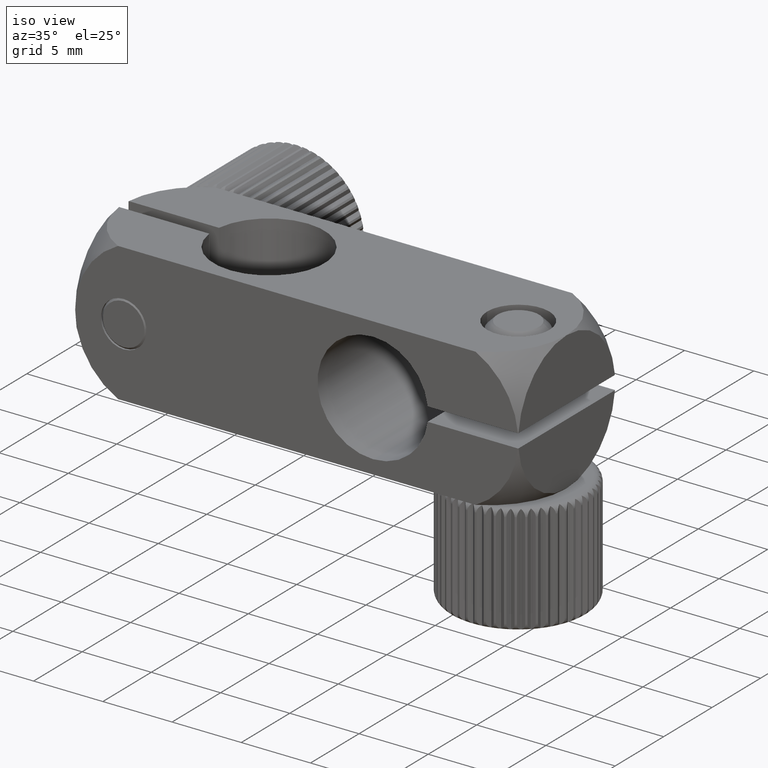
[diagram: clean part render]
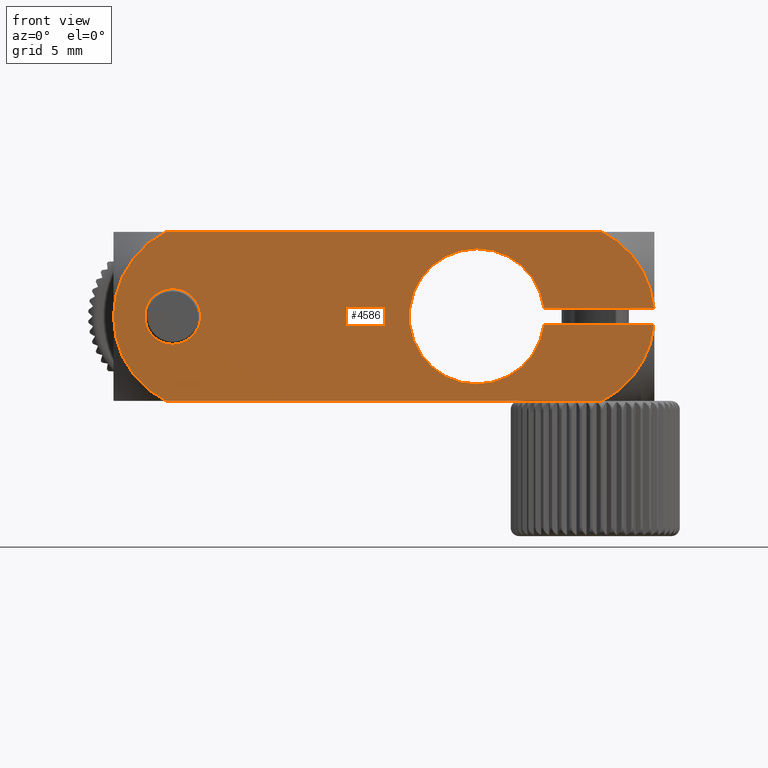
[diagram: tour spotlight — one face highlighted and labeled with its STEP entity id]
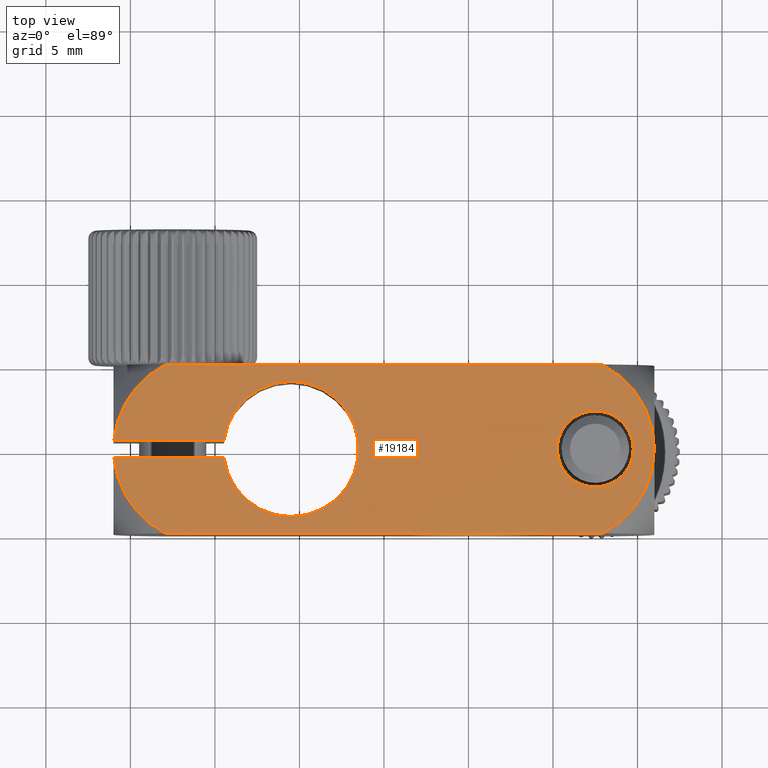
[diagram: tour spotlight — one face highlighted and labeled with its STEP entity id]
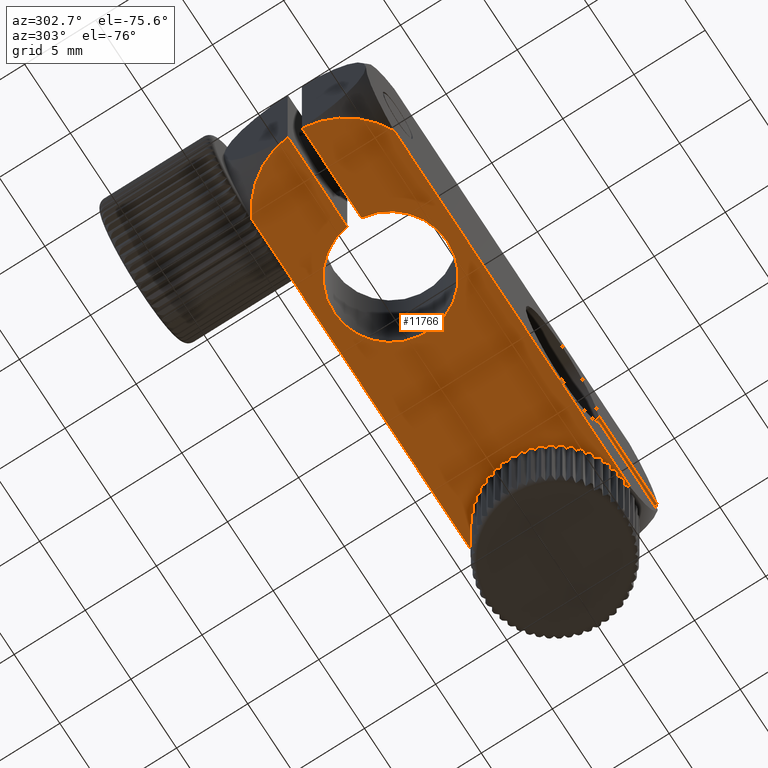
[diagram: tour spotlight — one face highlighted and labeled with its STEP entity id]
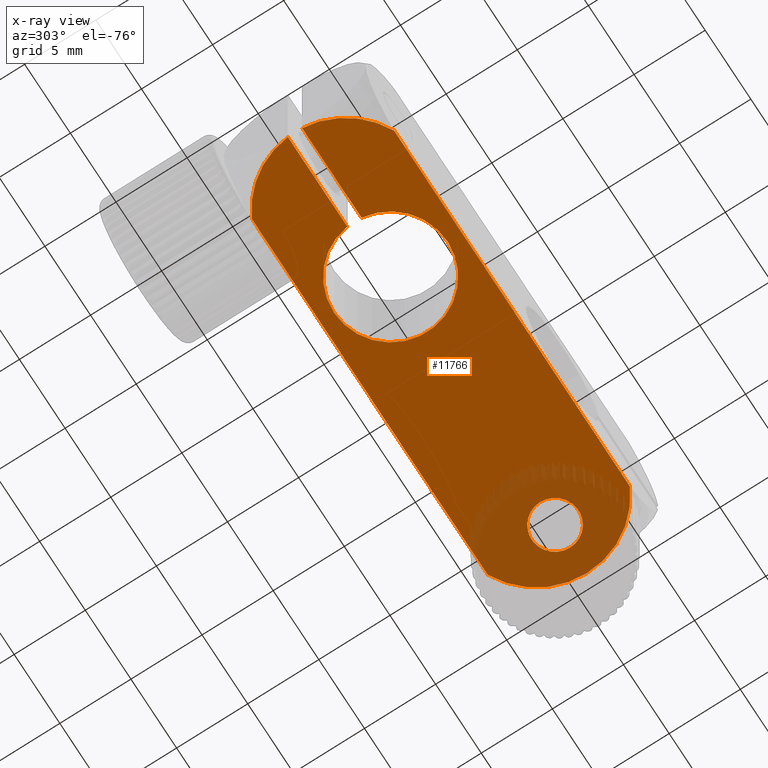
[diagram: x-ray of the same camera — body ghosted, this tour face saturated]
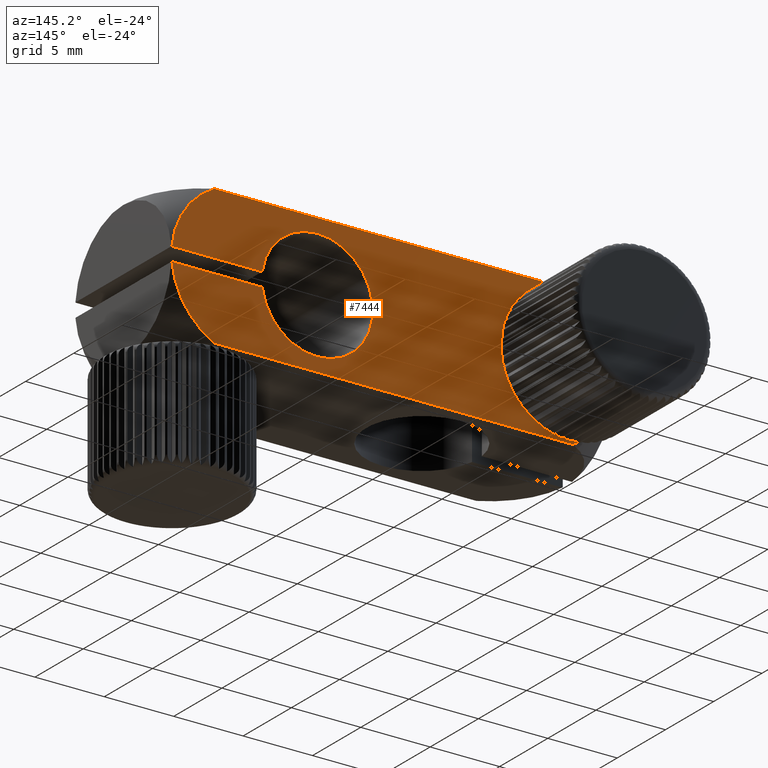
[diagram: tour spotlight — one face highlighted and labeled with its STEP entity id]
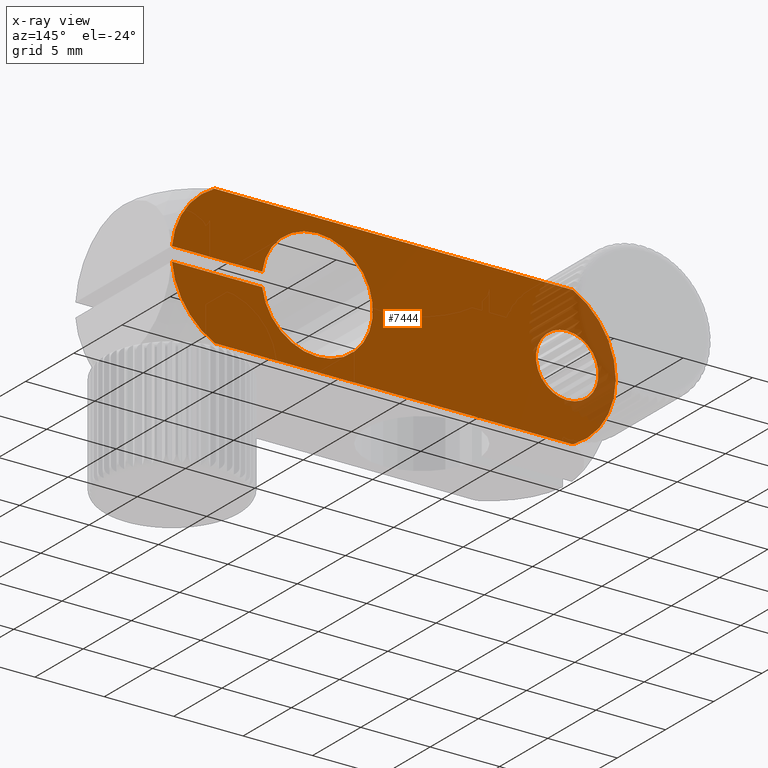
[diagram: x-ray of the same camera — body ghosted, this tour face saturated]
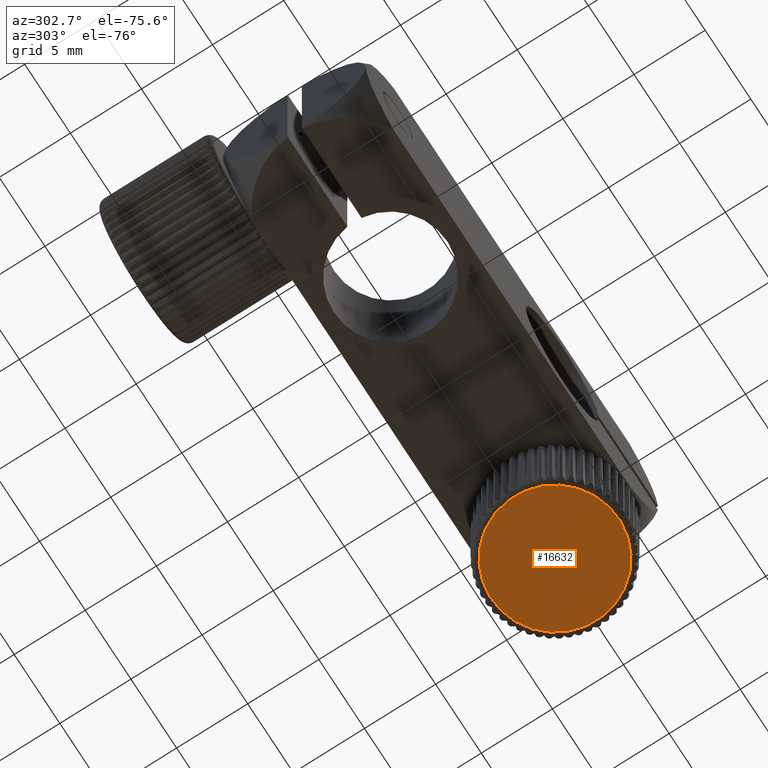
[diagram: tour spotlight — one face highlighted and labeled with its STEP entity id]
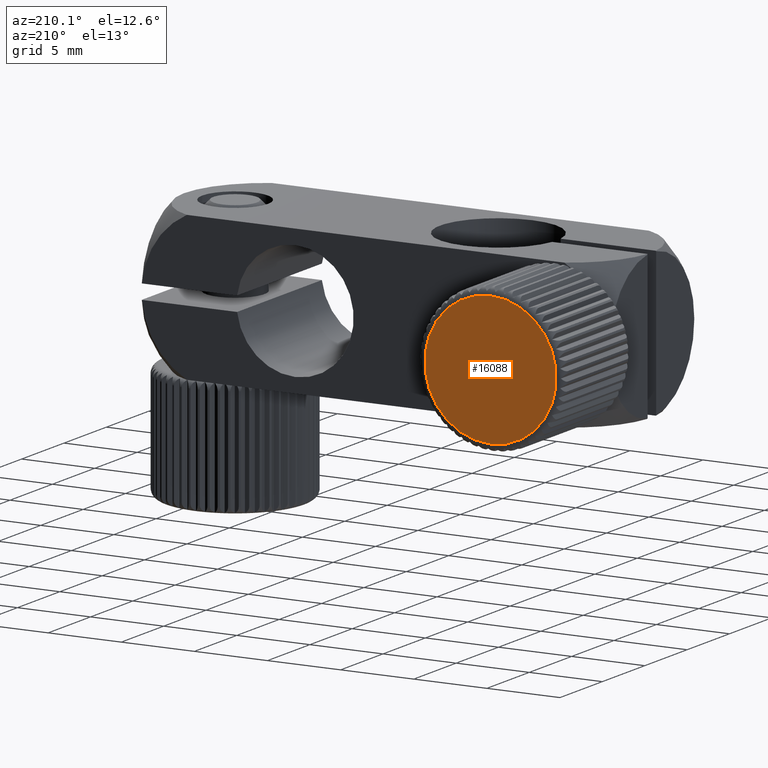
[diagram: tour spotlight — one face highlighted and labeled with its STEP entity id]
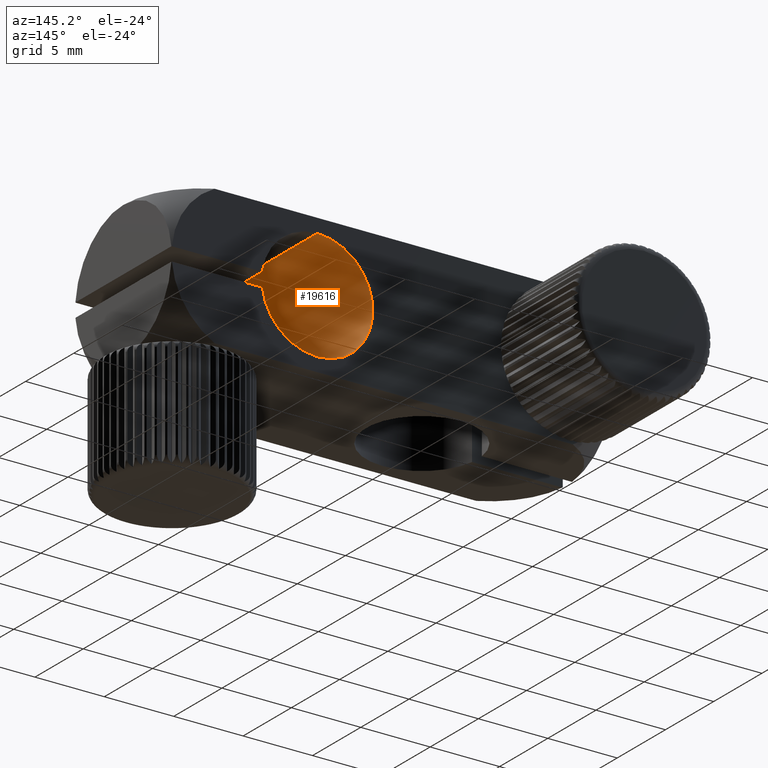
[diagram: tour spotlight — one face highlighted and labeled with its STEP entity id]
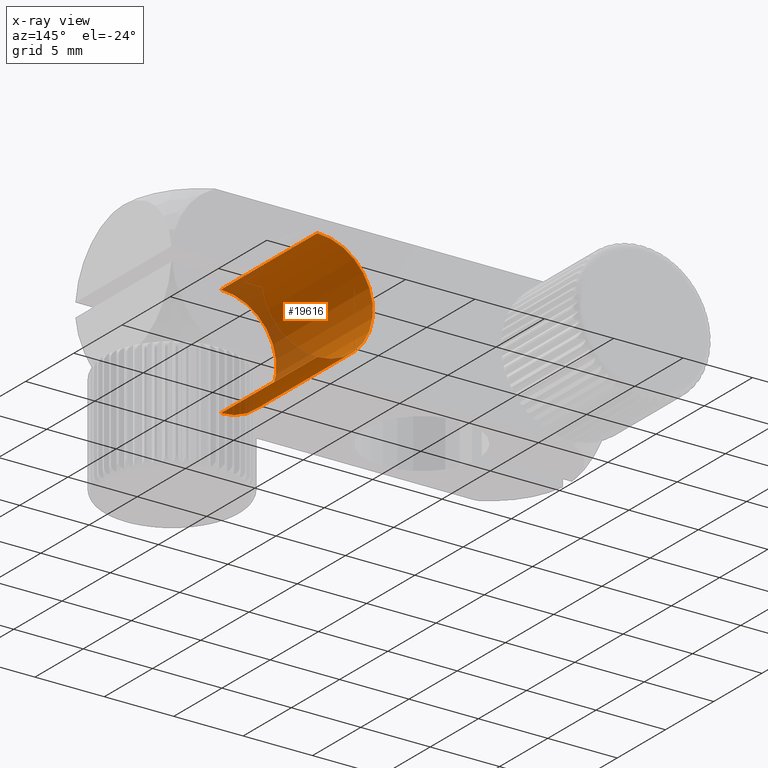
[diagram: x-ray of the same camera — body ghosted, this tour face saturated]
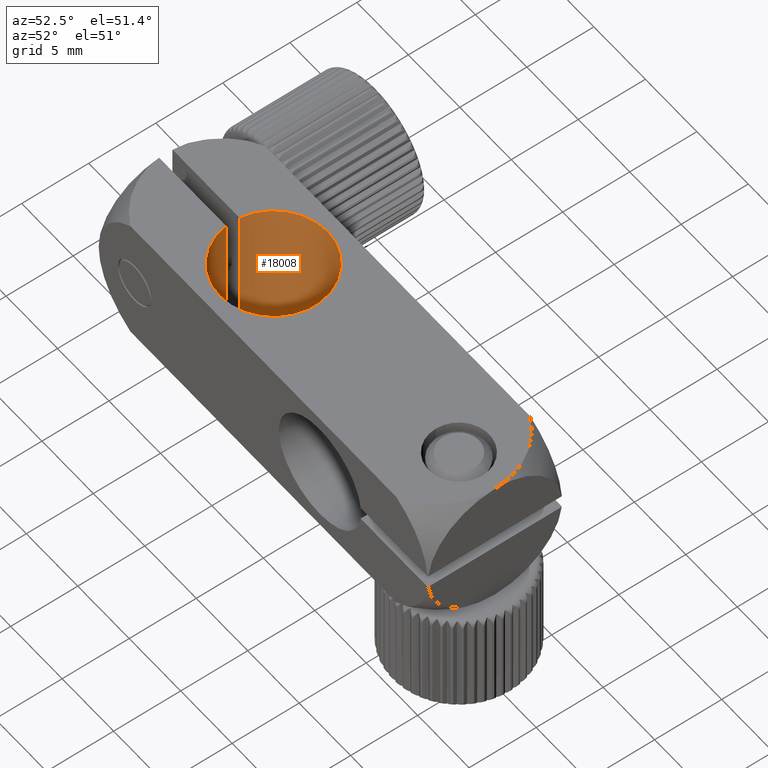
[diagram: tour spotlight — one face highlighted and labeled with its STEP entity id]
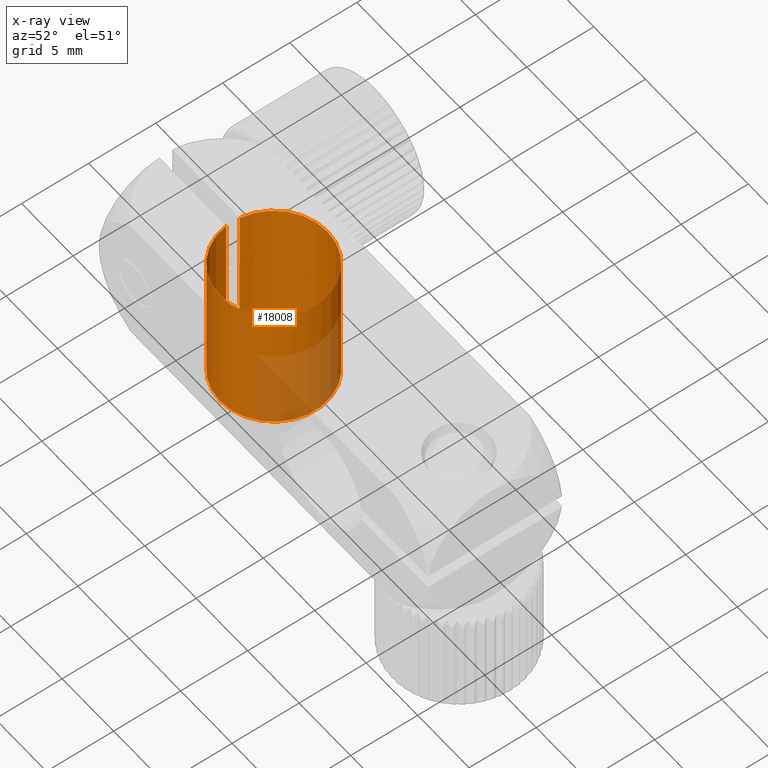
[diagram: x-ray of the same camera — body ghosted, this tour face saturated]
A machine part: a face-by-face anatomy tour. The part has 480 B-rep faces; the first image is the clean iso view, then the 8 largest visible faces are spotlighted one at a time (largest first), each with its STEP entity span.

Face 1 — front view, entity #4586. In plain terms, the highlighted planar face has unit normal (-0, 1, 0).
Definition (entity closure, byte-faithful):
#46 = VERTEX_POINT ( 'NONE', #1159 ) ;
#154 = ORIENTED_EDGE ( 'NONE', *, *, #8120, .F. ) ;
#175 = DIRECTION ( 'NONE',  ( 1.000000000000000000, 1.355252715606880800E-016, 1.214962810441751000E-016 ) ) ;
#222 = DIRECTION ( 'NONE',  ( 1.355252715606880800E-016, -1.000000000000000000, -0.0000000000000000000 ) ) ;
#500 = AXIS2_PLACEMENT_3D ( 'NONE', #3175, #222, #14158 ) ;
#534 = ORIENTED_EDGE ( 'NONE', *, *, #19892, .F. ) ;
#657 = EDGE_LOOP ( 'NONE', ( #10662, #1808, #154, #14033, #6453, #14779, #3223, #12564, #2085, #534, #15858 ) ) ;
#759 = DIRECTION ( 'NONE',  ( -1.355252715606880800E-016, 1.000000000000000000, 0.0000000000000000000 ) ) ;
#1159 = CARTESIAN_POINT ( 'NONE',  ( -12.90983005625052900, -4.999999999999999100, -5.000000000000000000 ) ) ;
#1204 = CARTESIAN_POINT ( 'NONE',  ( 9.468626966596886500, -4.999999999999995600, 0.5000000000000008900 ) ) ;
#1366 = EDGE_CURVE ( 'NONE', #13792, #1731, #16243, .T. ) ;
#1533 = AXIS2_PLACEMENT_3D ( 'NONE', #13113, #1909, #6823 ) ;
#1731 = VERTEX_POINT ( 'NONE', #11859 ) ;
#1808 = ORIENTED_EDGE ( 'NONE', *, *, #18215, .F. ) ;
#1825 = EDGE_CURVE ( 'NONE', #19272, #3856, #20169, .T. ) ;
#1864 = CIRCLE ( 'NONE', #16062, 5.590169943749477200 ) ;
#1909 = DIRECTION ( 'NONE',  ( -1.355252715606880800E-016, 1.000000000000000000, 0.0000000000000000000 ) ) ;
#2034 = AXIS2_PLACEMENT_3D ( 'NONE', #9656, #14535, #3547 ) ;
#2085 = ORIENTED_EDGE ( 'NONE', *, *, #1366, .F. ) ;
#2143 = FACE_BOUND ( 'NONE', #5744, .T. ) ;
#2329 = DIRECTION ( 'NONE',  ( 1.355252715606880800E-016, -1.000000000000000000, -0.0000000000000000000 ) ) ;
#2543 = CARTESIAN_POINT ( 'NONE',  ( 12.90983005625053300, -4.999999999999996400, -5.000000000000000000 ) ) ;
#2649 = VERTEX_POINT ( 'NONE', #4499 ) ;
#2675 = CARTESIAN_POINT ( 'NONE',  ( 10.40983005625052700, -4.999999999999996400, 0.0000000000000000000 ) ) ;
#3002 = DIRECTION ( 'NONE',  ( 1.000000000000000000, 1.355252715606880800E-016, 0.0000000000000000000 ) ) ;
#3124 = CARTESIAN_POINT ( 'NONE',  ( 9.468626966596886500, -4.999999999999996400, -0.5000000000000008900 ) ) ;
#3175 = CARTESIAN_POINT ( 'NONE',  ( 5.500000000000000000, -4.999999999999997300, 0.0000000000000000000 ) ) ;
#3223 = ORIENTED_EDGE ( 'NONE', *, *, #5642, .F. ) ;
#3239 = AXIS2_PLACEMENT_3D ( 'NONE', #10636, #4377, #16881 ) ;
#3547 = DIRECTION ( 'NONE',  ( -1.000000000000000000, 0.0000000000000000000, 0.0000000000000000000 ) ) ;
#3743 = VECTOR ( 'NONE', #3002, 1000.000000000000000 ) ;
#3856 = VERTEX_POINT ( 'NONE', #1204 ) ;
#3958 = DIRECTION ( 'NONE',  ( -1.000000000000000000, -2.168404344971008400E-016, 0.0000000000000000000 ) ) ;
#4196 = CARTESIAN_POINT ( 'NONE',  ( -15.99999999999999300, -5.000000000000000000, 5.000000000000000000 ) ) ;
#4377 = DIRECTION ( 'NONE',  ( 1.355252715606880800E-016, -1.000000000000000000, -0.0000000000000000000 ) ) ;
#4499 = CARTESIAN_POINT ( 'NONE',  ( 9.468626966596886500, -4.999999999999995600, -0.5000000000000008900 ) ) ;
#4521 = DIRECTION ( 'NONE',  ( -1.000000000000000000, -1.551583845779545700E-016, 0.0000000000000000000 ) ) ;
#4586 = ADVANCED_FACE ( 'NONE', ( #2143, #12989 ), #19656, .F. ) ;
#5642 = EDGE_CURVE ( 'NONE', #2649, #5956, #11039, .T. ) ;
#5744 = EDGE_LOOP ( 'NONE', ( #18590, #18289 ) ) ;
#5956 = VERTEX_POINT ( 'NONE', #15253 ) ;
#6167 = EDGE_CURVE ( 'NONE', #1731, #2649, #9270, .T. ) ;
#6261 = EDGE_CURVE ( 'NONE', #16070, #10030, #16150, .T. ) ;
#6293 = VECTOR ( 'NONE', #175, 1000.000000000000000 ) ;
#6396 = AXIS2_PLACEMENT_3D ( 'NONE', #10171, #759, #13336 ) ;
#6411 = CARTESIAN_POINT ( 'NONE',  ( 5.500000000000000900, -4.999999999999997300, 4.000000000000000900 ) ) ;
#6443 = LINE ( 'NONE', #17219, #3743 ) ;
#6453 = ORIENTED_EDGE ( 'NONE', *, *, #15966, .T. ) ;
#6823 = DIRECTION ( 'NONE',  ( -1.000000000000000000, 0.0000000000000000000, 0.0000000000000000000 ) ) ;
#7489 = DIRECTION ( 'NONE',  ( -1.355252715606880800E-016, 1.000000000000000000, 0.0000000000000000000 ) ) ;
#7751 = DIRECTION ( 'NONE',  ( -1.000000000000000000, -1.551583845779544700E-016, 0.0000000000000000000 ) ) ;
#8120 = EDGE_CURVE ( 'NONE', #20060, #8266, #9716, .T. ) ;
#8221 = EDGE_CURVE ( 'NONE', #46, #20060, #10471, .T. ) ;
#8266 = VERTEX_POINT ( 'NONE', #10942 ) ;
#8562 = CARTESIAN_POINT ( 'NONE',  ( -16.00000000000000000, -5.000000000000000000, 0.0000000000000000000 ) ) ;
#8603 = LINE ( 'NONE', #17259, #12813 ) ;
#8997 = DIRECTION ( 'NONE',  ( -1.355252715606880800E-016, 1.000000000000000000, 0.0000000000000000000 ) ) ;
#9066 = CARTESIAN_POINT ( 'NONE',  ( 10.40983005625052700, -4.999999999999996400, 0.0000000000000000000 ) ) ;
#9144 = AXIS2_PLACEMENT_3D ( 'NONE', #13266, #2329, #3958 ) ;
#9222 = CARTESIAN_POINT ( 'NONE',  ( -12.50000000000000000, -4.999999999999999100, 1.649999999999993500 ) ) ;
#9270 = CIRCLE ( 'NONE', #9144, 4.000000000000000900 ) ;
#9656 = CARTESIAN_POINT ( 'NONE',  ( -12.50000000000000000, -4.999999999999999100, 0.0000000000000000000 ) ) ;
#9716 = CIRCLE ( 'NONE', #6396, 5.590169943749473600 ) ;
#9758 = CARTESIAN_POINT ( 'NONE',  ( 15.97759441908055300, -4.999999999999995600, 0.5000000000000001100 ) ) ;
#10030 = VERTEX_POINT ( 'NONE', #9222 ) ;
#10171 = CARTESIAN_POINT ( 'NONE',  ( -10.40983005625052700, -4.999999999999999100, 0.0000000000000000000 ) ) ;
#10471 = CIRCLE ( 'NONE', #14179, 5.590169943749473600 ) ;
#10636 = CARTESIAN_POINT ( 'NONE',  ( 5.500000000000000000, -4.999999999999997300, 0.0000000000000000000 ) ) ;
#10662 = ORIENTED_EDGE ( 'NONE', *, *, #13268, .F. ) ;
#10690 = AXIS2_PLACEMENT_3D ( 'NONE', #9066, #8997, #16830 ) ;
#10880 = DIRECTION ( 'NONE',  ( -1.355252715606880800E-016, 1.000000000000000000, 0.0000000000000000000 ) ) ;
#10942 = CARTESIAN_POINT ( 'NONE',  ( -12.90983005625052900, -4.999999999999999100, 5.000000000000000000 ) ) ;
#11018 = DIRECTION ( 'NONE',  ( -1.355252715606880800E-016, 1.000000000000000000, 0.0000000000000000000 ) ) ;
#11039 = LINE ( 'NONE', #3124, #6293 ) ;
#11636 = EDGE_CURVE ( 'NONE', #5956, #15299, #1864, .T. ) ;
#11859 = CARTESIAN_POINT ( 'NONE',  ( 5.500000000000000000, -4.999999999999997300, -4.000000000000000900 ) ) ;
#11920 = CARTESIAN_POINT ( 'NONE',  ( 17.50000000000000000, -4.999999999999995600, 0.4999999999999998900 ) ) ;
#12159 = AXIS2_PLACEMENT_3D ( 'NONE', #4196, #7489, #15255 ) ;
#12564 = ORIENTED_EDGE ( 'NONE', *, *, #6167, .F. ) ;
#12813 = VECTOR ( 'NONE', #14161, 1000.000000000000000 ) ;
#12989 = FACE_OUTER_BOUND ( 'NONE', #657, .T. ) ;
#13113 = CARTESIAN_POINT ( 'NONE',  ( -12.50000000000000000, -4.999999999999999100, 0.0000000000000000000 ) ) ;
#13266 = CARTESIAN_POINT ( 'NONE',  ( 5.500000000000000000, -4.999999999999997300, 0.0000000000000000000 ) ) ;
#13268 = EDGE_CURVE ( 'NONE', #20333, #19272, #19300, .T. ) ;
#13336 = DIRECTION ( 'NONE',  ( -1.000000000000000000, -1.551583845779545700E-016, 0.0000000000000000000 ) ) ;
#13780 = VECTOR ( 'NONE', #20091, 1000.000000000000000 ) ;
#13792 = VERTEX_POINT ( 'NONE', #6411 ) ;
#14033 = ORIENTED_EDGE ( 'NONE', *, *, #8221, .F. ) ;
#14158 = DIRECTION ( 'NONE',  ( -1.000000000000000000, -2.168404344971008400E-016, 0.0000000000000000000 ) ) ;
#14161 = DIRECTION ( 'NONE',  ( 1.000000000000000000, 1.355252715606880800E-016, 0.0000000000000000000 ) ) ;
#14179 = AXIS2_PLACEMENT_3D ( 'NONE', #15578, #11018, #4521 ) ;
#14389 = CARTESIAN_POINT ( 'NONE',  ( -12.50000000000000000, -4.999999999999999100, -1.649999999999993500 ) ) ;
#14535 = DIRECTION ( 'NONE',  ( -1.355252715606880800E-016, 1.000000000000000000, 0.0000000000000000000 ) ) ;
#14779 = ORIENTED_EDGE ( 'NONE', *, *, #11636, .F. ) ;
#15253 = CARTESIAN_POINT ( 'NONE',  ( 15.97759441908055300, -4.999999999999995600, -0.5000000000000001100 ) ) ;
#15255 = DIRECTION ( 'NONE',  ( -1.000000000000000000, -1.355252715606880800E-016, 0.0000000000000000000 ) ) ;
#15299 = VERTEX_POINT ( 'NONE', #2543 ) ;
#15578 = CARTESIAN_POINT ( 'NONE',  ( -10.40983005625052700, -4.999999999999999100, 0.0000000000000000000 ) ) ;
#15858 = ORIENTED_EDGE ( 'NONE', *, *, #1825, .F. ) ;
#15966 = EDGE_CURVE ( 'NONE', #46, #15299, #6443, .T. ) ;
#15977 = CARTESIAN_POINT ( 'NONE',  ( 12.90983005625053300, -4.999999999999996400, 5.000000000000000000 ) ) ;
#16062 = AXIS2_PLACEMENT_3D ( 'NONE', #2675, #10880, #7751 ) ;
#16070 = VERTEX_POINT ( 'NONE', #14389 ) ;
#16150 = CIRCLE ( 'NONE', #2034, 1.649999999999993500 ) ;
#16243 = CIRCLE ( 'NONE', #3239, 4.000000000000000900 ) ;
#16830 = DIRECTION ( 'NONE',  ( -1.000000000000000000, -1.551583845779544700E-016, 0.0000000000000000000 ) ) ;
#16881 = DIRECTION ( 'NONE',  ( -1.000000000000000000, -2.168404344971008400E-016, 0.0000000000000000000 ) ) ;
#17219 = CARTESIAN_POINT ( 'NONE',  ( -15.99999999999999300, -5.000000000000000000, -5.000000000000000000 ) ) ;
#17259 = CARTESIAN_POINT ( 'NONE',  ( -15.99999999999999300, -5.000000000000000000, 5.000000000000000000 ) ) ;
#17456 = EDGE_CURVE ( 'NONE', #10030, #16070, #18217, .T. ) ;
#18176 = CIRCLE ( 'NONE', #500, 4.000000000000000900 ) ;
#18215 = EDGE_CURVE ( 'NONE', #8266, #20333, #8603, .T. ) ;
#18217 = CIRCLE ( 'NONE', #1533, 1.649999999999993500 ) ;
#18289 = ORIENTED_EDGE ( 'NONE', *, *, #6261, .T. ) ;
#18590 = ORIENTED_EDGE ( 'NONE', *, *, #17456, .T. ) ;
#19272 = VERTEX_POINT ( 'NONE', #9758 ) ;
#19300 = CIRCLE ( 'NONE', #10690, 5.590169943749477200 ) ;
#19656 = PLANE ( 'NONE',  #12159 ) ;
#19892 = EDGE_CURVE ( 'NONE', #3856, #13792, #18176, .T. ) ;
#20060 = VERTEX_POINT ( 'NONE', #8562 ) ;
#20091 = DIRECTION ( 'NONE',  ( -1.000000000000000000, -1.355252715606880800E-016, 1.214962810441751000E-016 ) ) ;
#20169 = LINE ( 'NONE', #11920, #13780 ) ;
#20333 = VERTEX_POINT ( 'NONE', #15977 ) ;

Face 2 — top view, entity #19184. In plain terms, the highlighted planar face has unit normal (0, 0, 1).
Definition (entity closure, byte-faithful):
#183 = EDGE_CURVE ( 'NONE', #14626, #6818, #4956, .T. ) ;
#346 = CARTESIAN_POINT ( 'NONE',  ( -5.499999999999995600, 0.0000000000000000000, 5.000000000000000000 ) ) ;
#402 = DIRECTION ( 'NONE',  ( -0.0000000000000000000, -0.0000000000000000000, 1.000000000000000000 ) ) ;
#521 = CARTESIAN_POINT ( 'NONE',  ( -15.97759441908055000, 0.5000000000000000000, 5.000000000000000000 ) ) ;
#752 = VECTOR ( 'NONE', #19096, 1000.000000000000000 ) ;
#777 = CARTESIAN_POINT ( 'NONE',  ( 12.90983005625052000, 5.000000000000003600, 5.000000000000000000 ) ) ;
#1441 = DIRECTION ( 'NONE',  ( 0.0000000000000000000, 0.0000000000000000000, 1.000000000000000000 ) ) ;
#1474 = CARTESIAN_POINT ( 'NONE',  ( 10.40983005625052700, 0.0000000000000000000, 5.000000000000000000 ) ) ;
#1529 = DIRECTION ( 'NONE',  ( 1.000000000000000000, 0.0000000000000000000, 0.0000000000000000000 ) ) ;
#1591 = VERTEX_POINT ( 'NONE', #521 ) ;
#1857 = DIRECTION ( 'NONE',  ( 0.0000000000000000000, 0.0000000000000000000, 1.000000000000000000 ) ) ;
#2156 = EDGE_CURVE ( 'NONE', #1591, #9802, #10340, .T. ) ;
#2584 = CIRCLE ( 'NONE', #9075, 5.590169943749474500 ) ;
#2722 = AXIS2_PLACEMENT_3D ( 'NONE', #346, #1857, #6636 ) ;
#2949 = CIRCLE ( 'NONE', #6527, 5.590169943749474500 ) ;
#3244 = DIRECTION ( 'NONE',  ( 0.0000000000000000000, 0.0000000000000000000, 1.000000000000000000 ) ) ;
#3615 = ORIENTED_EDGE ( 'NONE', *, *, #18215, .T. ) ;
#3679 = FACE_OUTER_BOUND ( 'NONE', #17063, .T. ) ;
#3855 = CARTESIAN_POINT ( 'NONE',  ( 15.99999999999999600, 0.0000000000000000000, 5.000000000000000000 ) ) ;
#4073 = EDGE_CURVE ( 'NONE', #20333, #18067, #14447, .T. ) ;
#4106 = ORIENTED_EDGE ( 'NONE', *, *, #14520, .T. ) ;
#4906 = ORIENTED_EDGE ( 'NONE', *, *, #2156, .T. ) ;
#4956 = CIRCLE ( 'NONE', #9013, 2.249999999999988000 ) ;
#5600 = CARTESIAN_POINT ( 'NONE',  ( -15.99999999999999600, -0.5000000000000000000, 5.000000000000000000 ) ) ;
#5816 = CARTESIAN_POINT ( 'NONE',  ( 14.74999999999998900, 0.0000000000000000000, 5.000000000000000900 ) ) ;
#5884 = FACE_BOUND ( 'NONE', #9080, .T. ) ;
#6197 = DIRECTION ( 'NONE',  ( -0.0000000000000000000, -0.0000000000000000000, -1.000000000000000000 ) ) ;
#6246 = CIRCLE ( 'NONE', #19634, 5.590169943749473600 ) ;
#6527 = AXIS2_PLACEMENT_3D ( 'NONE', #17188, #9549, #1529 ) ;
#6636 = DIRECTION ( 'NONE',  ( 1.000000000000000000, 0.0000000000000000000, -0.0000000000000000000 ) ) ;
#6704 = ORIENTED_EDGE ( 'NONE', *, *, #8395, .F. ) ;
#6737 = ORIENTED_EDGE ( 'NONE', *, *, #19808, .T. ) ;
#6818 = VERTEX_POINT ( 'NONE', #5816 ) ;
#7109 = DIRECTION ( 'NONE',  ( 0.0000000000000000000, 0.0000000000000000000, 1.000000000000000000 ) ) ;
#7160 = AXIS2_PLACEMENT_3D ( 'NONE', #20105, #6197, #15548 ) ;
#7223 = CARTESIAN_POINT ( 'NONE',  ( 12.50000000000000000, 0.0000000000000000000, 5.000000000000000900 ) ) ;
#7523 = DIRECTION ( 'NONE',  ( 1.000000000000000000, 0.0000000000000000000, 0.0000000000000000000 ) ) ;
#8266 = VERTEX_POINT ( 'NONE', #10942 ) ;
#8395 = EDGE_CURVE ( 'NONE', #6818, #14626, #20285, .T. ) ;
#8603 = LINE ( 'NONE', #17259, #12813 ) ;
#8650 = CARTESIAN_POINT ( 'NONE',  ( -15.97759441908055000, -0.5000000000000000000, 5.000000000000000000 ) ) ;
#8663 = CARTESIAN_POINT ( 'NONE',  ( -15.99999999999999600, 0.5000000000000000000, 5.000000000000000000 ) ) ;
#9013 = AXIS2_PLACEMENT_3D ( 'NONE', #7223, #19744, #15131 ) ;
#9075 = AXIS2_PLACEMENT_3D ( 'NONE', #16404, #7109, #18110 ) ;
#9080 = EDGE_LOOP ( 'NONE', ( #6704, #19534 ) ) ;
#9286 = VERTEX_POINT ( 'NONE', #777 ) ;
#9549 = DIRECTION ( 'NONE',  ( 0.0000000000000000000, 0.0000000000000000000, 1.000000000000000000 ) ) ;
#9802 = VERTEX_POINT ( 'NONE', #19097 ) ;
#10217 = DIRECTION ( 'NONE',  ( -1.000000000000000000, -0.0000000000000000000, -0.0000000000000000000 ) ) ;
#10340 = LINE ( 'NONE', #8663, #12554 ) ;
#10942 = CARTESIAN_POINT ( 'NONE',  ( -12.90983005625052900, -4.999999999999999100, 5.000000000000000000 ) ) ;
#10968 = DIRECTION ( 'NONE',  ( 1.000000000000000000, 0.0000000000000000000, 0.0000000000000000000 ) ) ;
#11230 = EDGE_CURVE ( 'NONE', #17368, #13118, #20061, .T. ) ;
#11844 = DIRECTION ( 'NONE',  ( 1.000000000000000000, 0.0000000000000000000, 0.0000000000000000000 ) ) ;
#11948 = EDGE_CURVE ( 'NONE', #13118, #8266, #2584, .T. ) ;
#12554 = VECTOR ( 'NONE', #11844, 1000.000000000000000 ) ;
#12813 = VECTOR ( 'NONE', #14161, 1000.000000000000000 ) ;
#13118 = VERTEX_POINT ( 'NONE', #8650 ) ;
#13912 = VECTOR ( 'NONE', #10217, 1000.000000000000000 ) ;
#14028 = LINE ( 'NONE', #14300, #752 ) ;
#14161 = DIRECTION ( 'NONE',  ( 1.000000000000000000, 1.355252715606880800E-016, 0.0000000000000000000 ) ) ;
#14300 = CARTESIAN_POINT ( 'NONE',  ( -15.99999999999999300, 5.000000000000000000, 5.000000000000000000 ) ) ;
#14382 = ORIENTED_EDGE ( 'NONE', *, *, #11948, .T. ) ;
#14447 = CIRCLE ( 'NONE', #19917, 5.590169943749473600 ) ;
#14520 = EDGE_CURVE ( 'NONE', #18067, #9286, #6246, .T. ) ;
#14607 = CARTESIAN_POINT ( 'NONE',  ( 12.50000000000000000, 0.0000000000000000000, 5.000000000000000900 ) ) ;
#14626 = VERTEX_POINT ( 'NONE', #17372 ) ;
#15093 = ORIENTED_EDGE ( 'NONE', *, *, #17825, .T. ) ;
#15131 = DIRECTION ( 'NONE',  ( 1.000000000000000000, 0.0000000000000000000, 0.0000000000000000000 ) ) ;
#15548 = DIRECTION ( 'NONE',  ( 1.000000000000000000, 0.0000000000000000000, 0.0000000000000000000 ) ) ;
#15977 = CARTESIAN_POINT ( 'NONE',  ( 12.90983005625053300, -4.999999999999996400, 5.000000000000000000 ) ) ;
#16072 = PLANE ( 'NONE',  #2722 ) ;
#16304 = AXIS2_PLACEMENT_3D ( 'NONE', #14607, #402, #19482 ) ;
#16404 = CARTESIAN_POINT ( 'NONE',  ( -10.40983005625052700, 0.0000000000000000000, 5.000000000000000000 ) ) ;
#16563 = ORIENTED_EDGE ( 'NONE', *, *, #4073, .T. ) ;
#17063 = EDGE_LOOP ( 'NONE', ( #16563, #4106, #18981, #6737, #4906, #15093, #19415, #14382, #3615 ) ) ;
#17188 = CARTESIAN_POINT ( 'NONE',  ( -10.40983005625052700, 0.0000000000000000000, 5.000000000000000000 ) ) ;
#17259 = CARTESIAN_POINT ( 'NONE',  ( -15.99999999999999300, -5.000000000000000000, 5.000000000000000000 ) ) ;
#17368 = VERTEX_POINT ( 'NONE', #17382 ) ;
#17372 = CARTESIAN_POINT ( 'NONE',  ( 10.25000000000001200, 2.755455298081532500E-016, 5.000000000000000900 ) ) ;
#17382 = CARTESIAN_POINT ( 'NONE',  ( -9.468626966596881200, -0.5000000000000000000, 5.000000000000000000 ) ) ;
#17622 = CARTESIAN_POINT ( 'NONE',  ( -12.90983005625052500, 5.000000000000000900, 5.000000000000000000 ) ) ;
#17825 = EDGE_CURVE ( 'NONE', #9802, #17368, #18210, .T. ) ;
#17955 = VERTEX_POINT ( 'NONE', #17622 ) ;
#18067 = VERTEX_POINT ( 'NONE', #3855 ) ;
#18110 = DIRECTION ( 'NONE',  ( 1.000000000000000000, 0.0000000000000000000, 0.0000000000000000000 ) ) ;
#18210 = CIRCLE ( 'NONE', #7160, 4.000000000000000000 ) ;
#18215 = EDGE_CURVE ( 'NONE', #8266, #20333, #8603, .T. ) ;
#18326 = EDGE_CURVE ( 'NONE', #9286, #17955, #14028, .T. ) ;
#18981 = ORIENTED_EDGE ( 'NONE', *, *, #18326, .T. ) ;
#19096 = DIRECTION ( 'NONE',  ( -1.000000000000000000, -1.355252715606880800E-016, -0.0000000000000000000 ) ) ;
#19097 = CARTESIAN_POINT ( 'NONE',  ( -9.468626966596881200, 0.4999999999999971700, 5.000000000000000000 ) ) ;
#19184 = ADVANCED_FACE ( 'NONE', ( #5884, #3679 ), #16072, .T. ) ;
#19415 = ORIENTED_EDGE ( 'NONE', *, *, #11230, .T. ) ;
#19482 = DIRECTION ( 'NONE',  ( 1.000000000000000000, 0.0000000000000000000, 0.0000000000000000000 ) ) ;
#19534 = ORIENTED_EDGE ( 'NONE', *, *, #183, .F. ) ;
#19634 = AXIS2_PLACEMENT_3D ( 'NONE', #20250, #1441, #7523 ) ;
#19744 = DIRECTION ( 'NONE',  ( -0.0000000000000000000, -0.0000000000000000000, 1.000000000000000000 ) ) ;
#19808 = EDGE_CURVE ( 'NONE', #17955, #1591, #2949, .T. ) ;
#19917 = AXIS2_PLACEMENT_3D ( 'NONE', #1474, #3244, #10968 ) ;
#20061 = LINE ( 'NONE', #5600, #13912 ) ;
#20105 = CARTESIAN_POINT ( 'NONE',  ( -5.499999999999995600, 0.0000000000000000000, 5.000000000000000000 ) ) ;
#20250 = CARTESIAN_POINT ( 'NONE',  ( 10.40983005625052700, 0.0000000000000000000, 5.000000000000000000 ) ) ;
#20285 = CIRCLE ( 'NONE', #16304, 2.249999999999988000 ) ;
#20333 = VERTEX_POINT ( 'NONE', #15977 ) ;

Face 3 — auxiliary view, entity #11766. An x-ray twin of the same camera follows (body ghosted, this face saturated) — the face is partly hidden behind the body. In plain terms, the highlighted planar face has unit normal (0, 0, 1).
Definition (entity closure, byte-faithful):
#46 = VERTEX_POINT ( 'NONE', #1159 ) ;
#180 = VECTOR ( 'NONE', #16899, 1000.000000000000000 ) ;
#205 = DIRECTION ( 'NONE',  ( -1.000000000000000000, -1.355252715606880800E-016, -0.0000000000000000000 ) ) ;
#301 = CIRCLE ( 'NONE', #10352, 5.590169943749474500 ) ;
#880 = FACE_BOUND ( 'NONE', #2372, .T. ) ;
#1159 = CARTESIAN_POINT ( 'NONE',  ( -12.90983005625052900, -4.999999999999999100, -5.000000000000000000 ) ) ;
#1512 = ORIENTED_EDGE ( 'NONE', *, *, #2201, .T. ) ;
#1515 = CARTESIAN_POINT ( 'NONE',  ( 12.50000000000000000, 0.0000000000000000000, -5.000000000000000000 ) ) ;
#2046 = ORIENTED_EDGE ( 'NONE', *, *, #16587, .F. ) ;
#2106 = LINE ( 'NONE', #18681, #180 ) ;
#2201 = EDGE_CURVE ( 'NONE', #19742, #3107, #10070, .T. ) ;
#2372 = EDGE_LOOP ( 'NONE', ( #1512, #8884 ) ) ;
#2543 = CARTESIAN_POINT ( 'NONE',  ( 12.90983005625053300, -4.999999999999996400, -5.000000000000000000 ) ) ;
#3002 = DIRECTION ( 'NONE',  ( 1.000000000000000000, 1.355252715606880800E-016, 0.0000000000000000000 ) ) ;
#3065 = AXIS2_PLACEMENT_3D ( 'NONE', #12602, #4692, #18969 ) ;
#3107 = VERTEX_POINT ( 'NONE', #6793 ) ;
#3366 = EDGE_CURVE ( 'NONE', #3107, #19742, #9315, .T. ) ;
#3473 = AXIS2_PLACEMENT_3D ( 'NONE', #8559, #19561, #15226 ) ;
#3511 = VERTEX_POINT ( 'NONE', #14278 ) ;
#3743 = VECTOR ( 'NONE', #3002, 1000.000000000000000 ) ;
#4004 = EDGE_CURVE ( 'NONE', #15299, #8137, #7554, .T. ) ;
#4189 = CARTESIAN_POINT ( 'NONE',  ( -5.499999999999995600, 0.0000000000000000000, -5.000000000000000000 ) ) ;
#4237 = VERTEX_POINT ( 'NONE', #17988 ) ;
#4557 = ORIENTED_EDGE ( 'NONE', *, *, #17369, .F. ) ;
#4692 = DIRECTION ( 'NONE',  ( 0.0000000000000000000, 0.0000000000000000000, 1.000000000000000000 ) ) ;
#4733 = DIRECTION ( 'NONE',  ( 1.000000000000000000, 0.0000000000000000000, 0.0000000000000000000 ) ) ;
#4766 = EDGE_CURVE ( 'NONE', #10038, #7372, #14926, .T. ) ;
#4795 = AXIS2_PLACEMENT_3D ( 'NONE', #4189, #7346, #15186 ) ;
#4921 = DIRECTION ( 'NONE',  ( 1.000000000000000000, 0.0000000000000000000, 0.0000000000000000000 ) ) ;
#4994 = CARTESIAN_POINT ( 'NONE',  ( -5.499999999999995600, 0.0000000000000000000, -5.000000000000000000 ) ) ;
#5880 = CARTESIAN_POINT ( 'NONE',  ( 12.90983005625052000, 5.000000000000003600, -5.000000000000000000 ) ) ;
#6165 = DIRECTION ( 'NONE',  ( 0.0000000000000000000, 0.0000000000000000000, 1.000000000000000000 ) ) ;
#6311 = PLANE ( 'NONE',  #17117 ) ;
#6443 = LINE ( 'NONE', #17219, #3743 ) ;
#6793 = CARTESIAN_POINT ( 'NONE',  ( 10.85000000000000700, 2.020667218593124900E-016, -5.000000000000000000 ) ) ;
#7316 = CARTESIAN_POINT ( 'NONE',  ( -9.468626966596881200, -0.5000000000000000000, -5.000000000000000000 ) ) ;
#7346 = DIRECTION ( 'NONE',  ( -0.0000000000000000000, -0.0000000000000000000, -1.000000000000000000 ) ) ;
#7372 = VERTEX_POINT ( 'NONE', #9505 ) ;
#7554 = CIRCLE ( 'NONE', #3065, 5.590169943749473600 ) ;
#7659 = VERTEX_POINT ( 'NONE', #7316 ) ;
#8003 = CARTESIAN_POINT ( 'NONE',  ( -15.99999999999999300, 5.000000000000000000, -5.000000000000000000 ) ) ;
#8050 = ORIENTED_EDGE ( 'NONE', *, *, #17300, .F. ) ;
#8137 = VERTEX_POINT ( 'NONE', #15173 ) ;
#8559 = CARTESIAN_POINT ( 'NONE',  ( 10.40983005625052700, 0.0000000000000000000, -5.000000000000000000 ) ) ;
#8779 = DIRECTION ( 'NONE',  ( 1.000000000000000000, 0.0000000000000000000, 0.0000000000000000000 ) ) ;
#8884 = ORIENTED_EDGE ( 'NONE', *, *, #3366, .T. ) ;
#9194 = DIRECTION ( 'NONE',  ( 1.000000000000000000, 0.0000000000000000000, 0.0000000000000000000 ) ) ;
#9280 = CARTESIAN_POINT ( 'NONE',  ( 12.50000000000000000, 0.0000000000000000000, -5.000000000000000000 ) ) ;
#9315 = CIRCLE ( 'NONE', #13416, 1.649999999999993500 ) ;
#9338 = CARTESIAN_POINT ( 'NONE',  ( -15.99999999999999600, 0.5000000000000000000, -5.000000000000000000 ) ) ;
#9505 = CARTESIAN_POINT ( 'NONE',  ( -9.468626966596881200, 0.4999999999999971700, -5.000000000000000000 ) ) ;
#10038 = VERTEX_POINT ( 'NONE', #17196 ) ;
#10070 = CIRCLE ( 'NONE', #10223, 1.649999999999993500 ) ;
#10223 = AXIS2_PLACEMENT_3D ( 'NONE', #9280, #6165, #4733 ) ;
#10352 = AXIS2_PLACEMENT_3D ( 'NONE', #11136, #10938, #4921 ) ;
#10604 = CARTESIAN_POINT ( 'NONE',  ( 14.14999999999999500, 0.0000000000000000000, -5.000000000000000000 ) ) ;
#10938 = DIRECTION ( 'NONE',  ( 0.0000000000000000000, 0.0000000000000000000, 1.000000000000000000 ) ) ;
#11008 = EDGE_CURVE ( 'NONE', #7659, #3511, #2106, .T. ) ;
#11136 = CARTESIAN_POINT ( 'NONE',  ( -10.40983005625052700, 0.0000000000000000000, -5.000000000000000000 ) ) ;
#11186 = ORIENTED_EDGE ( 'NONE', *, *, #4766, .F. ) ;
#11672 = EDGE_LOOP ( 'NONE', ( #14517, #19112, #15549, #15692, #19837, #2046, #11186, #8050, #4557 ) ) ;
#11766 = ADVANCED_FACE ( 'NONE', ( #880, #17098 ), #6311, .F. ) ;
#11776 = CIRCLE ( 'NONE', #16411, 5.590169943749474500 ) ;
#12602 = CARTESIAN_POINT ( 'NONE',  ( 10.40983005625052700, 0.0000000000000000000, -5.000000000000000000 ) ) ;
#12896 = CIRCLE ( 'NONE', #3473, 5.590169943749473600 ) ;
#13328 = VECTOR ( 'NONE', #205, 1000.000000000000000 ) ;
#13416 = AXIS2_PLACEMENT_3D ( 'NONE', #1515, #18817, #9194 ) ;
#13730 = DIRECTION ( 'NONE',  ( 0.0000000000000000000, 0.0000000000000000000, 1.000000000000000000 ) ) ;
#14053 = LINE ( 'NONE', #8003, #13328 ) ;
#14278 = CARTESIAN_POINT ( 'NONE',  ( -15.97759441908055000, -0.5000000000000000000, -5.000000000000000000 ) ) ;
#14291 = DIRECTION ( 'NONE',  ( 0.0000000000000000000, 0.0000000000000000000, 1.000000000000000000 ) ) ;
#14517 = ORIENTED_EDGE ( 'NONE', *, *, #14899, .F. ) ;
#14899 = EDGE_CURVE ( 'NONE', #8137, #20135, #12896, .T. ) ;
#14926 = LINE ( 'NONE', #9338, #19349 ) ;
#15173 = CARTESIAN_POINT ( 'NONE',  ( 15.99999999999999600, 0.0000000000000000000, -5.000000000000000000 ) ) ;
#15186 = DIRECTION ( 'NONE',  ( 1.000000000000000000, 0.0000000000000000000, 0.0000000000000000000 ) ) ;
#15226 = DIRECTION ( 'NONE',  ( 1.000000000000000000, 0.0000000000000000000, 0.0000000000000000000 ) ) ;
#15299 = VERTEX_POINT ( 'NONE', #2543 ) ;
#15549 = ORIENTED_EDGE ( 'NONE', *, *, #15966, .F. ) ;
#15692 = ORIENTED_EDGE ( 'NONE', *, *, #20097, .F. ) ;
#15966 = EDGE_CURVE ( 'NONE', #46, #15299, #6443, .T. ) ;
#16411 = AXIS2_PLACEMENT_3D ( 'NONE', #16811, #13730, #8779 ) ;
#16587 = EDGE_CURVE ( 'NONE', #7372, #7659, #19723, .T. ) ;
#16811 = CARTESIAN_POINT ( 'NONE',  ( -10.40983005625052700, 0.0000000000000000000, -5.000000000000000000 ) ) ;
#16899 = DIRECTION ( 'NONE',  ( -1.000000000000000000, -0.0000000000000000000, -0.0000000000000000000 ) ) ;
#17098 = FACE_OUTER_BOUND ( 'NONE', #11672, .T. ) ;
#17117 = AXIS2_PLACEMENT_3D ( 'NONE', #4994, #14291, #17396 ) ;
#17196 = CARTESIAN_POINT ( 'NONE',  ( -15.97759441908055000, 0.5000000000000000000, -5.000000000000000000 ) ) ;
#17219 = CARTESIAN_POINT ( 'NONE',  ( -15.99999999999999300, -5.000000000000000000, -5.000000000000000000 ) ) ;
#17300 = EDGE_CURVE ( 'NONE', #4237, #10038, #301, .T. ) ;
#17369 = EDGE_CURVE ( 'NONE', #20135, #4237, #14053, .T. ) ;
#17396 = DIRECTION ( 'NONE',  ( 1.000000000000000000, 0.0000000000000000000, -0.0000000000000000000 ) ) ;
#17988 = CARTESIAN_POINT ( 'NONE',  ( -12.90983005625052500, 5.000000000000000900, -5.000000000000000000 ) ) ;
#18681 = CARTESIAN_POINT ( 'NONE',  ( -15.99999999999999600, -0.5000000000000000000, -5.000000000000000000 ) ) ;
#18817 = DIRECTION ( 'NONE',  ( 0.0000000000000000000, 0.0000000000000000000, 1.000000000000000000 ) ) ;
#18969 = DIRECTION ( 'NONE',  ( 1.000000000000000000, 0.0000000000000000000, 0.0000000000000000000 ) ) ;
#19112 = ORIENTED_EDGE ( 'NONE', *, *, #4004, .F. ) ;
#19349 = VECTOR ( 'NONE', #20257, 1000.000000000000000 ) ;
#19561 = DIRECTION ( 'NONE',  ( 0.0000000000000000000, 0.0000000000000000000, 1.000000000000000000 ) ) ;
#19723 = CIRCLE ( 'NONE', #4795, 4.000000000000000000 ) ;
#19742 = VERTEX_POINT ( 'NONE', #10604 ) ;
#19837 = ORIENTED_EDGE ( 'NONE', *, *, #11008, .F. ) ;
#20097 = EDGE_CURVE ( 'NONE', #3511, #46, #11776, .T. ) ;
#20135 = VERTEX_POINT ( 'NONE', #5880 ) ;
#20257 = DIRECTION ( 'NONE',  ( 1.000000000000000000, 0.0000000000000000000, 0.0000000000000000000 ) ) ;

Face 4 — auxiliary view, entity #7444. An x-ray twin of the same camera follows (body ghosted, this face saturated) — the face is partly hidden behind the body. In plain terms, the highlighted planar face has unit normal (0, -1, 0).
Definition (entity closure, byte-faithful):
#89 = DIRECTION ( 'NONE',  ( 1.355252715606880800E-016, -1.000000000000000000, 0.0000000000000000000 ) ) ;
#94 = CARTESIAN_POINT ( 'NONE',  ( 9.468626966596886500, 5.000000000000003600, -0.5000000000000008900 ) ) ;
#103 = DIRECTION ( 'NONE',  ( 1.000000000000000000, 1.355252715606880800E-016, 0.0000000000000000000 ) ) ;
#129 = CARTESIAN_POINT ( 'NONE',  ( 17.50000000000000000, 5.000000000000004400, 0.4999999999999998900 ) ) ;
#202 = ORIENTED_EDGE ( 'NONE', *, *, #8340, .F. ) ;
#205 = DIRECTION ( 'NONE',  ( -1.000000000000000000, -1.355252715606880800E-016, -0.0000000000000000000 ) ) ;
#274 = ORIENTED_EDGE ( 'NONE', *, *, #5359, .F. ) ;
#752 = VECTOR ( 'NONE', #19096, 1000.000000000000000 ) ;
#777 = CARTESIAN_POINT ( 'NONE',  ( 12.90983005625052000, 5.000000000000003600, 5.000000000000000000 ) ) ;
#922 = ORIENTED_EDGE ( 'NONE', *, *, #8640, .T. ) ;
#994 = CIRCLE ( 'NONE', #11287, 5.590169943749470100 ) ;
#1100 = CIRCLE ( 'NONE', #13331, 5.590169943749470100 ) ;
#1603 = LINE ( 'NONE', #129, #18303 ) ;
#1681 = AXIS2_PLACEMENT_3D ( 'NONE', #6691, #9740, #6429 ) ;
#2368 = EDGE_CURVE ( 'NONE', #20135, #12910, #994, .T. ) ;
#2377 = CARTESIAN_POINT ( 'NONE',  ( -12.50000000000000000, 5.000000000000000900, -2.249999999999988000 ) ) ;
#3015 = DIRECTION ( 'NONE',  ( -1.000000000000000000, -1.355252715606880800E-016, 1.214962810441751000E-016 ) ) ;
#3164 = AXIS2_PLACEMENT_3D ( 'NONE', #5654, #11952, #13536 ) ;
#3197 = DIRECTION ( 'NONE',  ( 0.0000000000000000000, 0.0000000000000000000, 1.000000000000000000 ) ) ;
#3287 = CARTESIAN_POINT ( 'NONE',  ( 15.97759441908054600, 5.000000000000004400, 0.5000000000000001100 ) ) ;
#3395 = CARTESIAN_POINT ( 'NONE',  ( 15.97759441908054600, 5.000000000000004400, -0.5000000000000001100 ) ) ;
#3589 = FACE_BOUND ( 'NONE', #4078, .T. ) ;
#3779 = VERTEX_POINT ( 'NONE', #19830 ) ;
#3810 = CIRCLE ( 'NONE', #5336, 4.000000000000001800 ) ;
#3839 = DIRECTION ( 'NONE',  ( 1.355252715606880800E-016, -1.000000000000000000, 0.0000000000000000000 ) ) ;
#4078 = EDGE_LOOP ( 'NONE', ( #202, #274 ) ) ;
#4158 = CARTESIAN_POINT ( 'NONE',  ( 5.500000000000000000, 5.000000000000002700, -4.000000000000000900 ) ) ;
#4237 = VERTEX_POINT ( 'NONE', #17988 ) ;
#4658 = CARTESIAN_POINT ( 'NONE',  ( -10.40983005625052700, 5.000000000000000900, 0.0000000000000000000 ) ) ;
#4759 = VERTEX_POINT ( 'NONE', #15570 ) ;
#4845 = ORIENTED_EDGE ( 'NONE', *, *, #10137, .T. ) ;
#4903 = CIRCLE ( 'NONE', #1681, 5.590169943749473600 ) ;
#5336 = AXIS2_PLACEMENT_3D ( 'NONE', #19437, #3839, #16422 ) ;
#5359 = EDGE_CURVE ( 'NONE', #8492, #7732, #9504, .T. ) ;
#5521 = LINE ( 'NONE', #94, #12192 ) ;
#5578 = ORIENTED_EDGE ( 'NONE', *, *, #17369, .T. ) ;
#5654 = CARTESIAN_POINT ( 'NONE',  ( 5.500000000000000000, 5.000000000000002700, 0.0000000000000000000 ) ) ;
#5736 = CIRCLE ( 'NONE', #14968, 4.000000000000001800 ) ;
#5754 = CIRCLE ( 'NONE', #18137, 2.249999999999988000 ) ;
#5768 = DIRECTION ( 'NONE',  ( 1.000000000000000000, 2.168404344971007900E-016, 0.0000000000000000000 ) ) ;
#5872 = ORIENTED_EDGE ( 'NONE', *, *, #2368, .F. ) ;
#5880 = CARTESIAN_POINT ( 'NONE',  ( 12.90983005625052000, 5.000000000000003600, -5.000000000000000000 ) ) ;
#6429 = DIRECTION ( 'NONE',  ( 1.000000000000000000, 1.551583845779545700E-016, 0.0000000000000000000 ) ) ;
#6535 = CARTESIAN_POINT ( 'NONE',  ( -12.50000000000000000, 5.000000000000000900, 0.0000000000000000000 ) ) ;
#6691 = CARTESIAN_POINT ( 'NONE',  ( -10.40983005625052700, 5.000000000000000900, 0.0000000000000000000 ) ) ;
#6899 = DIRECTION ( 'NONE',  ( 1.355252715606880800E-016, -1.000000000000000000, 0.0000000000000000000 ) ) ;
#6917 = EDGE_CURVE ( 'NONE', #17124, #4237, #12952, .T. ) ;
#7042 = ORIENTED_EDGE ( 'NONE', *, *, #18733, .F. ) ;
#7432 = ORIENTED_EDGE ( 'NONE', *, *, #14046, .F. ) ;
#7444 = ADVANCED_FACE ( 'NONE', ( #3589, #10992 ), #9312, .F. ) ;
#7698 = VERTEX_POINT ( 'NONE', #4158 ) ;
#7732 = VERTEX_POINT ( 'NONE', #12475 ) ;
#7802 = DIRECTION ( 'NONE',  ( 1.000000000000000000, 1.551583845779545700E-016, 0.0000000000000000000 ) ) ;
#7893 = EDGE_CURVE ( 'NONE', #14298, #12910, #5521, .T. ) ;
#8003 = CARTESIAN_POINT ( 'NONE',  ( -15.99999999999999300, 5.000000000000000000, -5.000000000000000000 ) ) ;
#8102 = EDGE_CURVE ( 'NONE', #7698, #14298, #3810, .T. ) ;
#8340 = EDGE_CURVE ( 'NONE', #7732, #8492, #5754, .T. ) ;
#8492 = VERTEX_POINT ( 'NONE', #2377 ) ;
#8531 = DIRECTION ( 'NONE',  ( 1.000000000000000000, 1.551583845779546700E-016, 0.0000000000000000000 ) ) ;
#8640 = EDGE_CURVE ( 'NONE', #19476, #3779, #1603, .T. ) ;
#9155 = ORIENTED_EDGE ( 'NONE', *, *, #9477, .T. ) ;
#9286 = VERTEX_POINT ( 'NONE', #777 ) ;
#9312 = PLANE ( 'NONE',  #17464 ) ;
#9428 = CARTESIAN_POINT ( 'NONE',  ( 5.500000000000000000, 5.000000000000002700, 0.0000000000000000000 ) ) ;
#9477 = EDGE_CURVE ( 'NONE', #3779, #4759, #5736, .T. ) ;
#9504 = CIRCLE ( 'NONE', #10479, 2.249999999999988000 ) ;
#9740 = DIRECTION ( 'NONE',  ( 1.355252715606880800E-016, -1.000000000000000000, 0.0000000000000000000 ) ) ;
#10137 = EDGE_CURVE ( 'NONE', #4759, #7698, #16880, .T. ) ;
#10308 = ORIENTED_EDGE ( 'NONE', *, *, #7893, .T. ) ;
#10479 = AXIS2_PLACEMENT_3D ( 'NONE', #6535, #15962, #3197 ) ;
#10992 = FACE_OUTER_BOUND ( 'NONE', #13056, .T. ) ;
#11068 = DIRECTION ( 'NONE',  ( 1.355252715606880800E-016, -1.000000000000000000, 0.0000000000000000000 ) ) ;
#11208 = CARTESIAN_POINT ( 'NONE',  ( -12.50000000000000000, 5.000000000000000900, 0.0000000000000000000 ) ) ;
#11287 = AXIS2_PLACEMENT_3D ( 'NONE', #11465, #6899, #11661 ) ;
#11465 = CARTESIAN_POINT ( 'NONE',  ( 10.40983005625052700, 5.000000000000003600, 0.0000000000000000000 ) ) ;
#11661 = DIRECTION ( 'NONE',  ( 1.000000000000000000, 1.551583845779546700E-016, 0.0000000000000000000 ) ) ;
#11778 = DIRECTION ( 'NONE',  ( 1.355252715606880800E-016, -1.000000000000000000, 0.0000000000000000000 ) ) ;
#11952 = DIRECTION ( 'NONE',  ( 1.355252715606880800E-016, -1.000000000000000000, 0.0000000000000000000 ) ) ;
#12192 = VECTOR ( 'NONE', #15892, 1000.000000000000000 ) ;
#12475 = CARTESIAN_POINT ( 'NONE',  ( -12.50000000000000000, 5.000000000000000900, 2.249999999999988000 ) ) ;
#12644 = DIRECTION ( 'NONE',  ( -0.0000000000000000000, 1.000000000000000000, -0.0000000000000000000 ) ) ;
#12910 = VERTEX_POINT ( 'NONE', #3395 ) ;
#12952 = CIRCLE ( 'NONE', #13524, 5.590169943749473600 ) ;
#13056 = EDGE_LOOP ( 'NONE', ( #7432, #922, #9155, #4845, #15430, #10308, #5872, #5578, #13890, #7042, #18035 ) ) ;
#13328 = VECTOR ( 'NONE', #205, 1000.000000000000000 ) ;
#13331 = AXIS2_PLACEMENT_3D ( 'NONE', #19666, #11778, #8531 ) ;
#13524 = AXIS2_PLACEMENT_3D ( 'NONE', #4658, #11068, #7802 ) ;
#13536 = DIRECTION ( 'NONE',  ( 1.000000000000000000, 2.168404344971007900E-016, 0.0000000000000000000 ) ) ;
#13890 = ORIENTED_EDGE ( 'NONE', *, *, #6917, .F. ) ;
#13902 = CARTESIAN_POINT ( 'NONE',  ( 9.468626966596886500, 5.000000000000003600, -0.5000000000000008900 ) ) ;
#14028 = LINE ( 'NONE', #14300, #752 ) ;
#14046 = EDGE_CURVE ( 'NONE', #19476, #9286, #1100, .T. ) ;
#14053 = LINE ( 'NONE', #8003, #13328 ) ;
#14298 = VERTEX_POINT ( 'NONE', #13902 ) ;
#14300 = CARTESIAN_POINT ( 'NONE',  ( -15.99999999999999300, 5.000000000000000000, 5.000000000000000000 ) ) ;
#14968 = AXIS2_PLACEMENT_3D ( 'NONE', #9428, #89, #5768 ) ;
#15430 = ORIENTED_EDGE ( 'NONE', *, *, #8102, .T. ) ;
#15570 = CARTESIAN_POINT ( 'NONE',  ( 5.500000000000000900, 5.000000000000002700, 4.000000000000000900 ) ) ;
#15892 = DIRECTION ( 'NONE',  ( 1.000000000000000000, 1.355252715606880800E-016, 1.214962810441751000E-016 ) ) ;
#15962 = DIRECTION ( 'NONE',  ( -0.0000000000000000000, 1.000000000000000000, -0.0000000000000000000 ) ) ;
#16219 = CARTESIAN_POINT ( 'NONE',  ( -16.00000000000000000, 5.000000000000000000, 0.0000000000000000000 ) ) ;
#16422 = DIRECTION ( 'NONE',  ( 1.000000000000000000, 2.168404344971007900E-016, 0.0000000000000000000 ) ) ;
#16880 = CIRCLE ( 'NONE', #3164, 4.000000000000001800 ) ;
#17124 = VERTEX_POINT ( 'NONE', #16219 ) ;
#17369 = EDGE_CURVE ( 'NONE', #20135, #4237, #14053, .T. ) ;
#17422 = DIRECTION ( 'NONE',  ( 1.355252715606880800E-016, -1.000000000000000000, 0.0000000000000000000 ) ) ;
#17451 = DIRECTION ( 'NONE',  ( 0.0000000000000000000, 0.0000000000000000000, 1.000000000000000000 ) ) ;
#17464 = AXIS2_PLACEMENT_3D ( 'NONE', #20299, #17422, #103 ) ;
#17622 = CARTESIAN_POINT ( 'NONE',  ( -12.90983005625052500, 5.000000000000000900, 5.000000000000000000 ) ) ;
#17955 = VERTEX_POINT ( 'NONE', #17622 ) ;
#17988 = CARTESIAN_POINT ( 'NONE',  ( -12.90983005625052500, 5.000000000000000900, -5.000000000000000000 ) ) ;
#18035 = ORIENTED_EDGE ( 'NONE', *, *, #18326, .F. ) ;
#18137 = AXIS2_PLACEMENT_3D ( 'NONE', #11208, #12644, #17451 ) ;
#18303 = VECTOR ( 'NONE', #3015, 1000.000000000000000 ) ;
#18326 = EDGE_CURVE ( 'NONE', #9286, #17955, #14028, .T. ) ;
#18733 = EDGE_CURVE ( 'NONE', #17955, #17124, #4903, .T. ) ;
#19096 = DIRECTION ( 'NONE',  ( -1.000000000000000000, -1.355252715606880800E-016, -0.0000000000000000000 ) ) ;
#19437 = CARTESIAN_POINT ( 'NONE',  ( 5.500000000000000000, 5.000000000000002700, 0.0000000000000000000 ) ) ;
#19476 = VERTEX_POINT ( 'NONE', #3287 ) ;
#19666 = CARTESIAN_POINT ( 'NONE',  ( 10.40983005625052700, 5.000000000000003600, 0.0000000000000000000 ) ) ;
#19830 = CARTESIAN_POINT ( 'NONE',  ( 9.468626966596886500, 5.000000000000003600, 0.5000000000000008900 ) ) ;
#20135 = VERTEX_POINT ( 'NONE', #5880 ) ;
#20299 = CARTESIAN_POINT ( 'NONE',  ( -15.99999999999999300, 5.000000000000000000, 5.000000000000000000 ) ) ;

Face 5 — auxiliary view, entity #16632. In plain terms, the highlighted planar face has unit normal (0, -0, 1).
Definition (entity closure, byte-faithful):
#1084 = CIRCLE ( 'NONE', #5572, 4.500000000000004400 ) ;
#1803 = CARTESIAN_POINT ( 'NONE',  ( 12.49999999999999600, 0.0000000000000000000, -13.00000000000000500 ) ) ;
#2062 = CARTESIAN_POINT ( 'NONE',  ( 8.343223903938186600, -1.723720536284567800, -13.00000000000000500 ) ) ;
#2250 = ORIENTED_EDGE ( 'NONE', *, *, #15436, .T. ) ;
#2958 = DIRECTION ( 'NONE',  ( -0.0000000000000000000, -0.0000000000000000000, -1.000000000000000000 ) ) ;
#4407 = AXIS2_PLACEMENT_3D ( 'NONE', #14974, #18344, #19869 ) ;
#4675 = DIRECTION ( 'NONE',  ( 0.9237280213470685500, 0.3830490080632370000, 0.0000000000000000000 ) ) ;
#5572 = AXIS2_PLACEMENT_3D ( 'NONE', #9348, #2958, #4675 ) ;
#6278 = VERTEX_POINT ( 'NONE', #14468 ) ;
#7660 = FACE_OUTER_BOUND ( 'NONE', #15935, .T. ) ;
#9348 = CARTESIAN_POINT ( 'NONE',  ( 12.49999999999999600, 0.0000000000000000000, -13.00000000000000500 ) ) ;
#11056 = ORIENTED_EDGE ( 'NONE', *, *, #16987, .T. ) ;
#11290 = DIRECTION ( 'NONE',  ( -0.0000000000000000000, -0.0000000000000000000, -1.000000000000000000 ) ) ;
#12114 = PLANE ( 'NONE',  #4407 ) ;
#12956 = VERTEX_POINT ( 'NONE', #2062 ) ;
#14468 = CARTESIAN_POINT ( 'NONE',  ( 16.65677609606180800, 1.723720536284567800, -13.00000000000000500 ) ) ;
#14780 = CIRCLE ( 'NONE', #15994, 4.500000000000004400 ) ;
#14974 = CARTESIAN_POINT ( 'NONE',  ( 10.58475495968380800, 4.618640106735341500, -13.00000000000000500 ) ) ;
#15436 = EDGE_CURVE ( 'NONE', #12956, #6278, #1084, .T. ) ;
#15935 = EDGE_LOOP ( 'NONE', ( #11056, #2250 ) ) ;
#15994 = AXIS2_PLACEMENT_3D ( 'NONE', #1803, #11290, #16152 ) ;
#16152 = DIRECTION ( 'NONE',  ( 0.9237280213470685500, 0.3830490080632370000, 0.0000000000000000000 ) ) ;
#16632 = ADVANCED_FACE ( 'NONE', ( #7660 ), #12114, .F. ) ;
#16987 = EDGE_CURVE ( 'NONE', #6278, #12956, #14780, .T. ) ;
#18344 = DIRECTION ( 'NONE',  ( 0.0000000000000000000, -0.0000000000000000000, 1.000000000000000000 ) ) ;
#19869 = DIRECTION ( 'NONE',  ( 0.9237280213470683300, 0.3830490080632371600, 0.0000000000000000000 ) ) ;

Face 6 — auxiliary view, entity #16088. In plain terms, the highlighted planar face has unit normal (0, -1, 0).
Definition (entity closure, byte-faithful):
#187 = CARTESIAN_POINT ( 'NONE',  ( -17.50000000000000000, 13.00000000000000500, 0.0000000000000000000 ) ) ;
#579 = EDGE_CURVE ( 'NONE', #1295, #10980, #8881, .T. ) ;
#741 = DIRECTION ( 'NONE',  ( 7.709882115452470300E-016, 0.0000000000000000000, 1.000000000000000000 ) ) ;
#865 = AXIS2_PLACEMENT_3D ( 'NONE', #9900, #6588, #6790 ) ;
#1295 = VERTEX_POINT ( 'NONE', #13586 ) ;
#1795 = FACE_OUTER_BOUND ( 'NONE', #9030, .T. ) ;
#2369 = ORIENTED_EDGE ( 'NONE', *, *, #579, .T. ) ;
#4020 = CARTESIAN_POINT ( 'NONE',  ( -12.50000000000000200, 13.00000000000000500, 0.0000000000000000000 ) ) ;
#6409 = DIRECTION ( 'NONE',  ( 6.661338147750933300E-016, 0.0000000000000000000, 1.000000000000000000 ) ) ;
#6588 = DIRECTION ( 'NONE',  ( -0.0000000000000000000, 1.000000000000000000, -0.0000000000000000000 ) ) ;
#6601 = DIRECTION ( 'NONE',  ( 0.0000000000000000000, -1.000000000000000000, 0.0000000000000000000 ) ) ;
#6790 = DIRECTION ( 'NONE',  ( 7.709882115452470300E-016, 0.0000000000000000000, 1.000000000000000000 ) ) ;
#7539 = CARTESIAN_POINT ( 'NONE',  ( -12.49999999999999800, 13.00000000000000500, 4.500000000000003600 ) ) ;
#8881 = CIRCLE ( 'NONE', #865, 4.500000000000003600 ) ;
#9030 = EDGE_LOOP ( 'NONE', ( #18130, #2369 ) ) ;
#9127 = AXIS2_PLACEMENT_3D ( 'NONE', #4020, #16534, #741 ) ;
#9645 = CIRCLE ( 'NONE', #9127, 4.500000000000003600 ) ;
#9900 = CARTESIAN_POINT ( 'NONE',  ( -12.50000000000000200, 13.00000000000000500, 0.0000000000000000000 ) ) ;
#10980 = VERTEX_POINT ( 'NONE', #7539 ) ;
#13586 = CARTESIAN_POINT ( 'NONE',  ( -12.50000000000000500, 13.00000000000000500, -4.499999999999999100 ) ) ;
#15755 = EDGE_CURVE ( 'NONE', #10980, #1295, #9645, .T. ) ;
#16042 = PLANE ( 'NONE',  #20067 ) ;
#16088 = ADVANCED_FACE ( 'NONE', ( #1795 ), #16042, .F. ) ;
#16534 = DIRECTION ( 'NONE',  ( -0.0000000000000000000, 1.000000000000000000, -0.0000000000000000000 ) ) ;
#18130 = ORIENTED_EDGE ( 'NONE', *, *, #15755, .T. ) ;
#20067 = AXIS2_PLACEMENT_3D ( 'NONE', #187, #6601, #6409 ) ;

Face 7 — auxiliary view, entity #19616. An x-ray twin of the same camera follows (body ghosted, this face saturated) — the face is partly hidden behind the body. In plain terms, the highlighted cylindrical surface (partial cylindrical patch) has radius 4 mm, axis along (0, -1, 0).
Definition (entity closure, byte-faithful):
#176 = ORIENTED_EDGE ( 'NONE', *, *, #11255, .T. ) ;
#1366 = EDGE_CURVE ( 'NONE', #13792, #1731, #16243, .T. ) ;
#1731 = VERTEX_POINT ( 'NONE', #11859 ) ;
#2290 = EDGE_CURVE ( 'NONE', #7698, #1731, #5643, .T. ) ;
#2402 = ORIENTED_EDGE ( 'NONE', *, *, #10137, .F. ) ;
#3127 = ORIENTED_EDGE ( 'NONE', *, *, #2290, .F. ) ;
#3164 = AXIS2_PLACEMENT_3D ( 'NONE', #5654, #11952, #13536 ) ;
#3239 = AXIS2_PLACEMENT_3D ( 'NONE', #10636, #4377, #16881 ) ;
#3879 = CARTESIAN_POINT ( 'NONE',  ( 5.500000000000000900, 5.001000000000004800, 4.000000000000000900 ) ) ;
#4158 = CARTESIAN_POINT ( 'NONE',  ( 5.500000000000000000, 5.000000000000002700, -4.000000000000000900 ) ) ;
#4377 = DIRECTION ( 'NONE',  ( 1.355252715606880800E-016, -1.000000000000000000, -0.0000000000000000000 ) ) ;
#4759 = VERTEX_POINT ( 'NONE', #15570 ) ;
#4991 = DIRECTION ( 'NONE',  ( 0.0000000000000000000, -1.000000000000000000, 0.0000000000000000000 ) ) ;
#5205 = AXIS2_PLACEMENT_3D ( 'NONE', #11981, #16706, #13616 ) ;
#5643 = LINE ( 'NONE', #9607, #16224 ) ;
#5654 = CARTESIAN_POINT ( 'NONE',  ( 5.500000000000000000, 5.000000000000002700, 0.0000000000000000000 ) ) ;
#6411 = CARTESIAN_POINT ( 'NONE',  ( 5.500000000000000900, -4.999999999999997300, 4.000000000000000900 ) ) ;
#7698 = VERTEX_POINT ( 'NONE', #4158 ) ;
#8234 = VECTOR ( 'NONE', #16528, 1000.000000000000000 ) ;
#9607 = CARTESIAN_POINT ( 'NONE',  ( 5.500000000000000000, 5.001000000000004800, -4.000000000000000900 ) ) ;
#10137 = EDGE_CURVE ( 'NONE', #4759, #7698, #16880, .T. ) ;
#10636 = CARTESIAN_POINT ( 'NONE',  ( 5.500000000000000000, -4.999999999999997300, 0.0000000000000000000 ) ) ;
#11074 = CYLINDRICAL_SURFACE ( 'NONE', #5205, 4.000000000000000900 ) ;
#11255 = EDGE_CURVE ( 'NONE', #4759, #13792, #12444, .T. ) ;
#11859 = CARTESIAN_POINT ( 'NONE',  ( 5.500000000000000000, -4.999999999999997300, -4.000000000000000900 ) ) ;
#11952 = DIRECTION ( 'NONE',  ( 1.355252715606880800E-016, -1.000000000000000000, 0.0000000000000000000 ) ) ;
#11981 = CARTESIAN_POINT ( 'NONE',  ( 5.500000000000000000, 5.001000000000004800, 0.0000000000000000000 ) ) ;
#12444 = LINE ( 'NONE', #3879, #8234 ) ;
#13036 = FACE_OUTER_BOUND ( 'NONE', #16087, .T. ) ;
#13536 = DIRECTION ( 'NONE',  ( 1.000000000000000000, 2.168404344971007900E-016, 0.0000000000000000000 ) ) ;
#13616 = DIRECTION ( 'NONE',  ( 0.0000000000000000000, 0.0000000000000000000, -1.000000000000000000 ) ) ;
#13792 = VERTEX_POINT ( 'NONE', #6411 ) ;
#14384 = ORIENTED_EDGE ( 'NONE', *, *, #1366, .T. ) ;
#15570 = CARTESIAN_POINT ( 'NONE',  ( 5.500000000000000900, 5.000000000000002700, 4.000000000000000900 ) ) ;
#16087 = EDGE_LOOP ( 'NONE', ( #2402, #176, #14384, #3127 ) ) ;
#16224 = VECTOR ( 'NONE', #4991, 1000.000000000000000 ) ;
#16243 = CIRCLE ( 'NONE', #3239, 4.000000000000000900 ) ;
#16528 = DIRECTION ( 'NONE',  ( 0.0000000000000000000, -1.000000000000000000, 0.0000000000000000000 ) ) ;
#16706 = DIRECTION ( 'NONE',  ( 0.0000000000000000000, -1.000000000000000000, 0.0000000000000000000 ) ) ;
#16880 = CIRCLE ( 'NONE', #3164, 4.000000000000001800 ) ;
#16881 = DIRECTION ( 'NONE',  ( -1.000000000000000000, -2.168404344971008400E-016, 0.0000000000000000000 ) ) ;
#19616 = ADVANCED_FACE ( 'NONE', ( #13036 ), #11074, .F. ) ;

Face 8 — auxiliary view, entity #18008. An x-ray twin of the same camera follows (body ghosted, this face saturated) — the face is partly hidden behind the body. In plain terms, the highlighted cylindrical surface (partial cylindrical patch) has radius 4 mm, axis along (-0, -0, -1).
Definition (entity closure, byte-faithful):
#4189 = CARTESIAN_POINT ( 'NONE',  ( -5.499999999999995600, 0.0000000000000000000, -5.000000000000000000 ) ) ;
#4795 = AXIS2_PLACEMENT_3D ( 'NONE', #4189, #7346, #15186 ) ;
#5378 = EDGE_CURVE ( 'NONE', #9802, #7372, #18346, .T. ) ;
#5426 = CYLINDRICAL_SURFACE ( 'NONE', #14546, 3.999999999999999100 ) ;
#6197 = DIRECTION ( 'NONE',  ( -0.0000000000000000000, -0.0000000000000000000, -1.000000000000000000 ) ) ;
#6289 = DIRECTION ( 'NONE',  ( -0.0000000000000000000, -0.0000000000000000000, -1.000000000000000000 ) ) ;
#7160 = AXIS2_PLACEMENT_3D ( 'NONE', #20105, #6197, #15548 ) ;
#7316 = CARTESIAN_POINT ( 'NONE',  ( -9.468626966596881200, -0.5000000000000000000, -5.000000000000000000 ) ) ;
#7341 = ORIENTED_EDGE ( 'NONE', *, *, #16587, .T. ) ;
#7346 = DIRECTION ( 'NONE',  ( -0.0000000000000000000, -0.0000000000000000000, -1.000000000000000000 ) ) ;
#7372 = VERTEX_POINT ( 'NONE', #9505 ) ;
#7659 = VERTEX_POINT ( 'NONE', #7316 ) ;
#8049 = CARTESIAN_POINT ( 'NONE',  ( -9.468626966596881200, 0.4999999999999971700, 5.000000000000000000 ) ) ;
#8329 = LINE ( 'NONE', #18806, #10834 ) ;
#8594 = DIRECTION ( 'NONE',  ( -1.000000000000000000, 0.0000000000000000000, 0.0000000000000000000 ) ) ;
#8667 = ORIENTED_EDGE ( 'NONE', *, *, #5378, .T. ) ;
#9505 = CARTESIAN_POINT ( 'NONE',  ( -9.468626966596881200, 0.4999999999999971700, -5.000000000000000000 ) ) ;
#9802 = VERTEX_POINT ( 'NONE', #19097 ) ;
#10834 = VECTOR ( 'NONE', #6289, 1000.000000000000000 ) ;
#11987 = CARTESIAN_POINT ( 'NONE',  ( -5.499999999999995600, 0.0000000000000000000, 5.000000000000000000 ) ) ;
#13761 = EDGE_LOOP ( 'NONE', ( #7341, #16954, #19979, #8667 ) ) ;
#14546 = AXIS2_PLACEMENT_3D ( 'NONE', #11987, #18010, #8594 ) ;
#15186 = DIRECTION ( 'NONE',  ( 1.000000000000000000, 0.0000000000000000000, 0.0000000000000000000 ) ) ;
#15548 = DIRECTION ( 'NONE',  ( 1.000000000000000000, 0.0000000000000000000, 0.0000000000000000000 ) ) ;
#15904 = DIRECTION ( 'NONE',  ( -0.0000000000000000000, -0.0000000000000000000, -1.000000000000000000 ) ) ;
#16587 = EDGE_CURVE ( 'NONE', #7372, #7659, #19723, .T. ) ;
#16664 = VECTOR ( 'NONE', #15904, 1000.000000000000000 ) ;
#16738 = FACE_OUTER_BOUND ( 'NONE', #13761, .T. ) ;
#16954 = ORIENTED_EDGE ( 'NONE', *, *, #19509, .F. ) ;
#17368 = VERTEX_POINT ( 'NONE', #17382 ) ;
#17382 = CARTESIAN_POINT ( 'NONE',  ( -9.468626966596881200, -0.5000000000000000000, 5.000000000000000000 ) ) ;
#17825 = EDGE_CURVE ( 'NONE', #9802, #17368, #18210, .T. ) ;
#18008 = ADVANCED_FACE ( 'NONE', ( #16738 ), #5426, .F. ) ;
#18010 = DIRECTION ( 'NONE',  ( -0.0000000000000000000, -0.0000000000000000000, -1.000000000000000000 ) ) ;
#18210 = CIRCLE ( 'NONE', #7160, 4.000000000000000000 ) ;
#18346 = LINE ( 'NONE', #8049, #16664 ) ;
#18806 = CARTESIAN_POINT ( 'NONE',  ( -9.468626966596881200, -0.5000000000000000000, 5.000000000000000000 ) ) ;
#19097 = CARTESIAN_POINT ( 'NONE',  ( -9.468626966596881200, 0.4999999999999971700, 5.000000000000000000 ) ) ;
#19509 = EDGE_CURVE ( 'NONE', #17368, #7659, #8329, .T. ) ;
#19723 = CIRCLE ( 'NONE', #4795, 4.000000000000000000 ) ;
#19979 = ORIENTED_EDGE ( 'NONE', *, *, #17825, .F. ) ;
#20105 = CARTESIAN_POINT ( 'NONE',  ( -5.499999999999995600, 0.0000000000000000000, 5.000000000000000000 ) ) ;